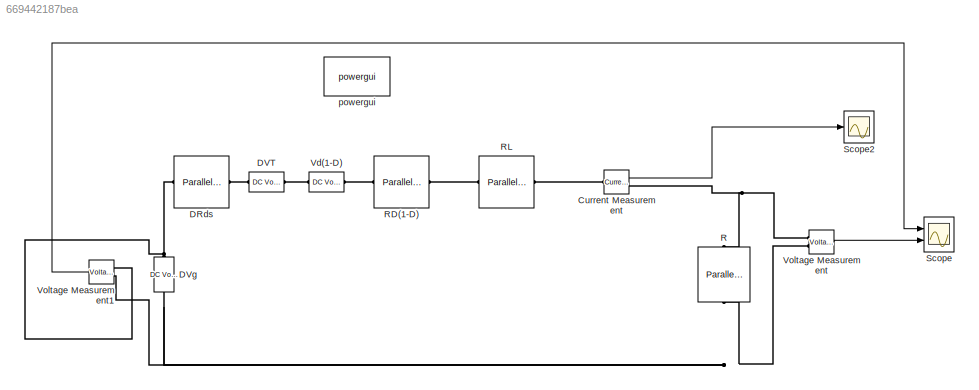
MODEL slx_669442187bea
KIND model
CONFIG InitFcn = Vg= 7.5;\nfs = 300e3;\n\nD = 0.44;\n\nR = 26.4;\nL = 40e-6;\nC = 0.8e-6;\n\n
BLOCK [Reference] Current Measurement  REF=powerlib/Measurements/Current Measurement
  OutputType = Complex
  PSBequivalent = 0
  PhasorSimulation = off
  Ports = [0, 1, 0, 0, 0, 1, 1]
  SourceBlock = powerlib/Measurements/Current Measurement
  SourceType = Current Measurement
  UserDataPersistent = on
BLOCK [Reference] DRds  REF=powerlib/Elements/Parallel RLC Branch
  AttributesFormatString = \n
  BranchType = R
  Capacitance = C
  Inductance = 1e-3
  InitialCurrent = 0
  InitialVoltage = 0
  LConnTagsString = a
  Measurements = None
  Ports = [0, 0, 0, 0, 0, 1, 1]
  RConnTagsString = __new0
  Resistance = 0.0536
  SetiL0 = off
  Setx0 = on
  SourceBlock = powerlib/Elements/Parallel RLC Branch
  SourceType = Parallel RLC Branch
BLOCK [Reference] DVT  REF=powerlib/Electrical
Sources/DC Voltage Source
  Amplitude = 13.63352
  Measurements = None
  Ports = [0, 0, 0, 0, 0, 1, 1]
  SourceBlock = powerlib/Electrical\nSources/DC Voltage Source
  SourceType = DC Voltage Source
BLOCK [Reference] DVg  REF=powerlib/Electrical
Sources/DC Voltage Source
  Amplitude = 15.008
  Measurements = None
  Ports = [0, 0, 0, 0, 0, 1, 1]
  SourceBlock = powerlib/Electrical\nSources/DC Voltage Source
  SourceType = DC Voltage Source
BLOCK [Reference] R  REF=powerlib/Elements/Parallel RLC Branch
  AttributesFormatString = \n
  BranchType = R
  Capacitance = C
  Inductance = 1e-3
  InitialCurrent = 0
  InitialVoltage = 0
  LConnTagsString = a
  Measurements = None
  Ports = [0, 0, 0, 0, 0, 1, 1]
  RConnTagsString = __new0
  Resistance = 3
  SetiL0 = off
  Setx0 = on
  SourceBlock = powerlib/Elements/Parallel RLC Branch
  SourceType = Parallel RLC Branch
BLOCK [Reference] RD(1-D)  REF=powerlib/Elements/Parallel RLC Branch
  AttributesFormatString = \n
  BranchType = R
  Capacitance = C
  Inductance = 1e-3
  InitialCurrent = 0
  InitialVoltage = 0
  LConnTagsString = a
  Measurements = None
  Ports = [0, 0, 0, 0, 0, 1, 1]
  RConnTagsString = __new0
  Resistance = 0.00464
  SetiL0 = off
  Setx0 = on
  SourceBlock = powerlib/Elements/Parallel RLC Branch
  SourceType = Parallel RLC Branch
BLOCK [Reference] RL  REF=powerlib/Elements/Parallel RLC Branch
  AttributesFormatString = \n
  BranchType = R
  Capacitance = C
  Inductance = 1e-3
  InitialCurrent = 0
  InitialVoltage = 0
  LConnTagsString = a
  Measurements = None
  Ports = [0, 0, 0, 0, 0, 1, 1]
  RConnTagsString = __new0
  Resistance = 2.6
  SetiL0 = off
  Setx0 = on
  SourceBlock = powerlib/Elements/Parallel RLC Branch
  SourceType = Parallel RLC Branch
BLOCK [Scope] Scope
  Floating = off
  NumInputPorts = 2
  Ports = [2]
  ShowLegends = off
  YMax = 5~5
  YMin = -5~-5
  ZoomMode = xonly
BLOCK [Scope] Scope2
  Floating = off
  NumInputPorts = 1
  Ports = [1]
  SaveName = ScopeData2
  ShowLegends = off
  ZoomMode = yonly
BLOCK [Reference] Vd(1-D)  REF=powerlib/Electrical
Sources/DC Voltage Source
  Amplitude = 0.3712
  Measurements = None
  Ports = [0, 0, 0, 0, 0, 1, 1]
  SourceBlock = powerlib/Electrical\nSources/DC Voltage Source
  SourceType = DC Voltage Source
BLOCK [Reference] Voltage Measurement  REF=powerlib/Measurements/Voltage Measurement
  OutputType = Complex
  PSBequivalent = 0
  PhasorSimulation = off
  Ports = [0, 1, 0, 0, 0, 2]
  SourceBlock = powerlib/Measurements/Voltage Measurement
  SourceType = Voltage Measurement
  UserDataPersistent = on
BLOCK [Reference] Voltage Measurement1  REF=powerlib/Measurements/Voltage Measurement
  OutputType = Complex
  PSBequivalent = 0
  PhasorSimulation = off
  Ports = [0, 1, 0, 0, 0, 2]
  SourceBlock = powerlib/Measurements/Voltage Measurement
  SourceType = Voltage Measurement
  UserDataPersistent = on
BLOCK [Reference] powergui  REF=powerlib/powergui
  DisableRonSwitches = off
  DisableSnubberDevices = off
  DisableVfSwitches = off
  DisplayEquations = off
  DisplayStyle = 1
  EnableUseOfTLC = off
  ErrMax = 1e-4
  Frange = [0:2:500]
  FreqAxis = off
  FunctionMessages = off
  HookPort = off
  Interpol = off
  Iterations = 50
  MaxFrequency = 1000
  Pbase = 100e6
  Ports = []
  Priority = 1
  ResistiveCurrentMeasurement = off
  RestoreLinks = warning
  RmsSteady = 1
  SPID = off
  SampleTime = 50e-6
  ShowGrid = off
  SolverType = Tustin
  SourceBlock = powerlib/powergui
  SourceType = PSB option menu block
  StartTime = 0.0
  SwTol = 0
  Ts = 0
  UnitsV = kV
  UnitsW = MW
  UserDataPersistent = on
  Xlog = on
  Ylog = off
  ZoomFFT = off
  cycles = 1
  display = off
  echomessages = off
  frequency = 60
  frequencyindice = 0
  frequencyindicesteady = 1
  fundamental = 60
  methode = off
  save = off
  structure = 0
  variable = ZData
  x0status = blocks
LINE Current Measurement:1 -> Scope2:1
LINE Voltage Measurement1:1 -> Scope:1
LINE Voltage Measurement:1 -> Scope:2
PLINE Current Measurement:LConn1 -- RL:LConn1
PNET net1: Current Measurement:RConn1 -- R:LConn1 -- Voltage Measurement:LConn1
PLINE DRds:LConn1 -- DVT:LConn1
PNET net2: DRds:RConn1 -- DVg:RConn1 -- Voltage Measurement1:LConn1
PLINE DVT:RConn1 -- Vd(1-D):RConn1
PNET net3: DVg:LConn1 -- R:RConn1 -- Voltage Measurement1:LConn2 -- Voltage Measurement:LConn2
PLINE RD(1-D):LConn1 -- RL:RConn1
PLINE RD(1-D):RConn1 -- Vd(1-D):LConn1
note: PNET lines group multi-terminal physical nets as a canonical sorted terminal list (undirected conserving connections); 2-terminal nets keep the pairwise PLINE form
